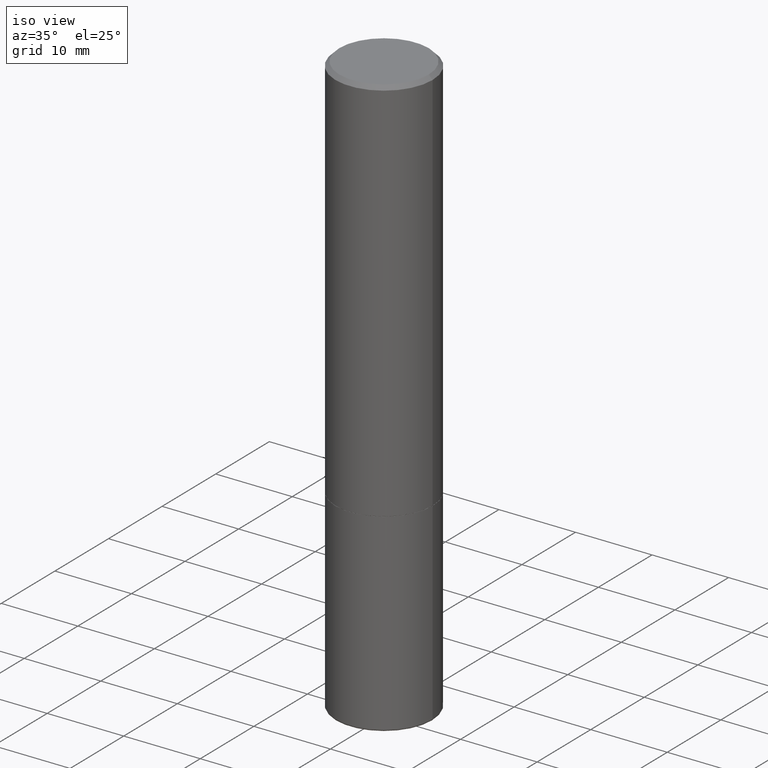
[diagram: clean part render]
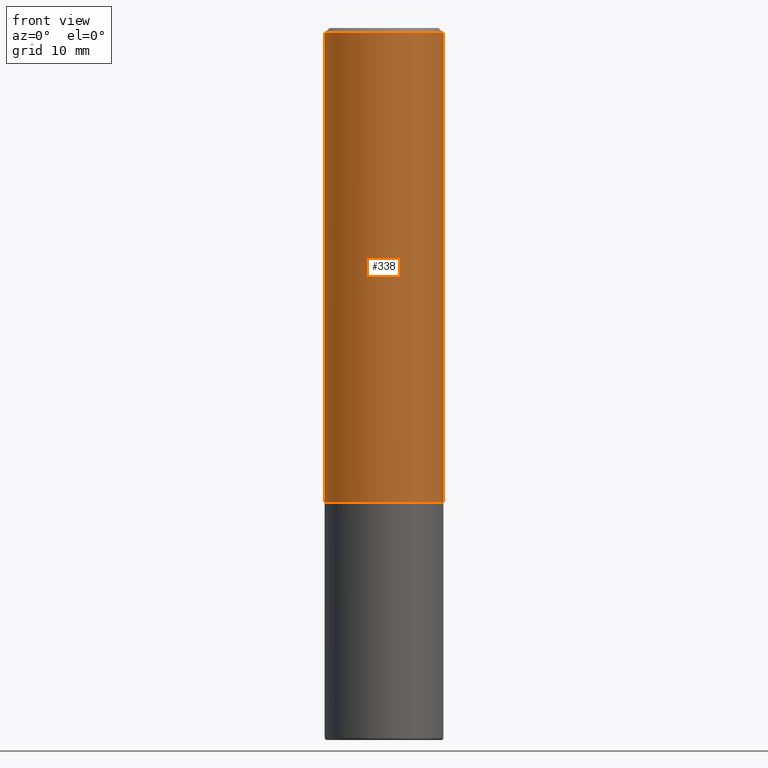
[diagram: tour spotlight — one face highlighted and labeled with its STEP entity id]
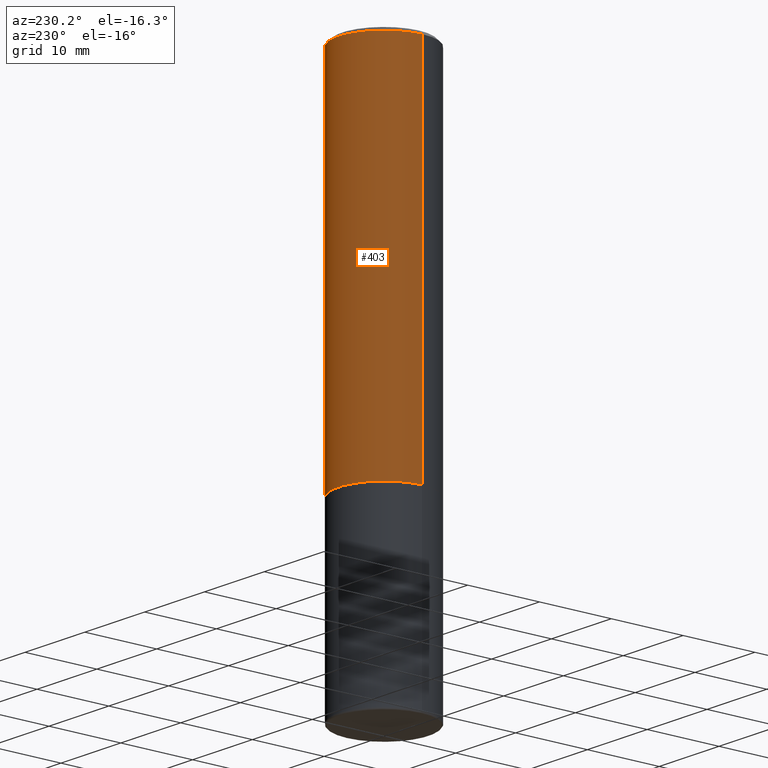
[diagram: tour spotlight — one face highlighted and labeled with its STEP entity id]
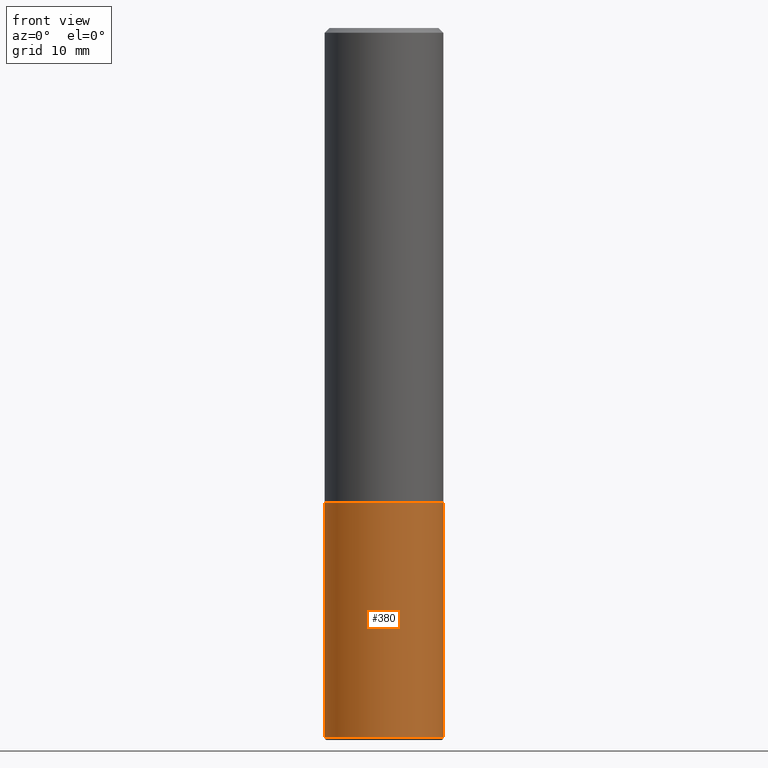
[diagram: tour spotlight — one face highlighted and labeled with its STEP entity id]
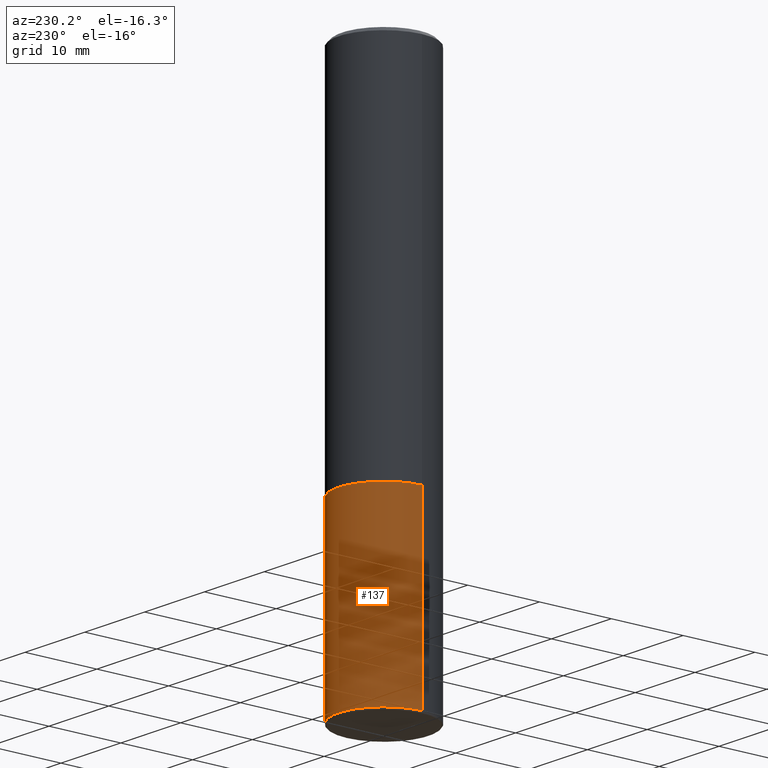
[diagram: tour spotlight — one face highlighted and labeled with its STEP entity id]
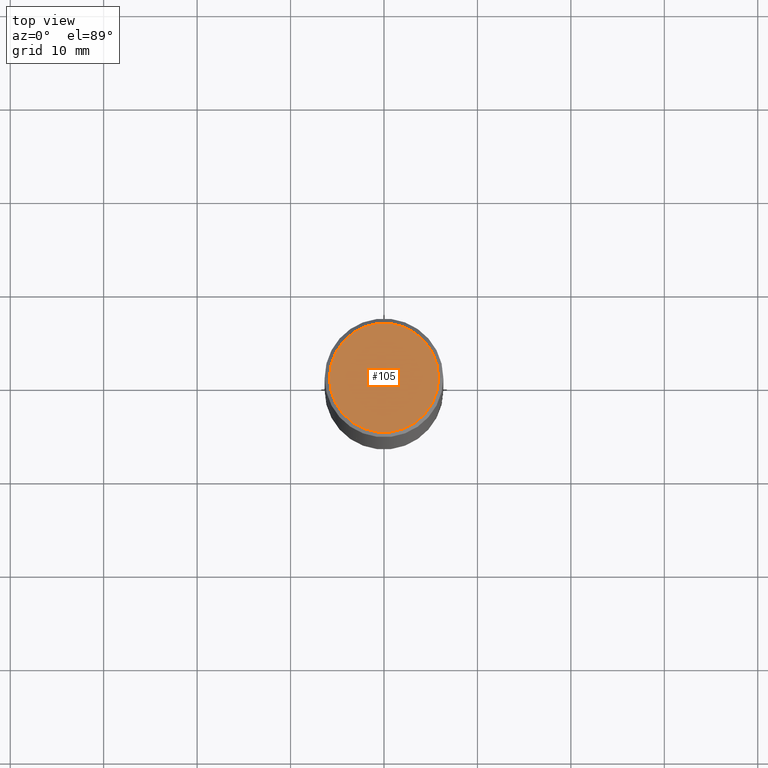
[diagram: tour spotlight — one face highlighted and labeled with its STEP entity id]
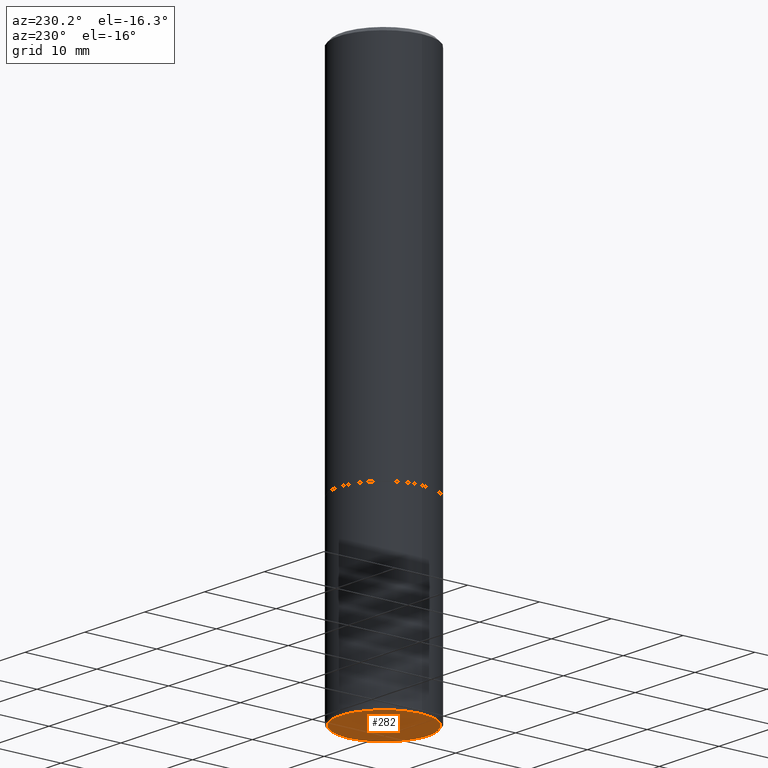
[diagram: tour spotlight — one face highlighted and labeled with its STEP entity id]
A machine part: a face-by-face anatomy tour. The part has 14 B-rep faces; the first image is the clean iso view, then the 6 largest visible faces are spotlighted one at a time (largest first), each with its STEP entity span.

Face 1 — front view, entity #338. In plain terms, the highlighted cylindrical surface (partial cylindrical patch) has radius 6.35 mm, axis along (-0, 0, 1).
Definition (entity closure, byte-faithful):
#5 = VECTOR ( 'NONE', #305, 39.37007874015748143 ) ;
#12 = CARTESIAN_POINT ( 'NONE',  ( 0.2500000000000002220, -8.725211865769017202E-15, -1.999000000000000110 ) ) ;
#13 = DIRECTION ( 'NONE',  ( 1.000000000000000000, -6.982962677686267499E-15, 4.876176775795936353E-29 ) ) ;
#40 = CARTESIAN_POINT ( 'NONE',  ( -0.2500000000000001110, 1.776356839400251254E-15, -1.229733772563727146E-29 ) ) ;
#49 = CARTESIAN_POINT ( 'NONE',  ( 4.890937612370287172E-31, -6.982962677686310098E-17, -0.02000000000000005593 ) ) ;
#54 = VERTEX_POINT ( 'NONE', #194 ) ;
#57 = VERTEX_POINT ( 'NONE', #12 ) ;
#64 = CIRCLE ( 'NONE', #151, 0.2500000000000002220 ) ;
#68 = EDGE_CURVE ( 'NONE', #168, #225, #94, .T. ) ;
#71 = AXIS2_PLACEMENT_3D ( 'NONE', #49, #141, #73 ) ;
#73 = DIRECTION ( 'NONE',  ( 1.000000000000000000, -6.982962677686266711E-15, 0.000000000000000000 ) ) ;
#84 = FACE_OUTER_BOUND ( 'NONE', #351, .T. ) ;
#94 = LINE ( 'NONE', #40, #5 ) ;
#111 = DIRECTION ( 'NONE',  ( -2.445468806185136877E-29, 3.491481338843145188E-15, 1.000000000000000000 ) ) ;
#114 = AXIS2_PLACEMENT_3D ( 'NONE', #408, #153, #13 ) ;
#141 = DIRECTION ( 'NONE',  ( -2.445468806185136597E-29, 3.491481338843145583E-15, 1.000000000000000000 ) ) ;
#144 = VECTOR ( 'NONE', #111, 39.37007874015748143 ) ;
#146 = CARTESIAN_POINT ( 'NONE',  ( 0.2500000000000001110, -1.745740669421567664E-15, 1.219044193948984649E-29 ) ) ;
#147 = CYLINDRICAL_SURFACE ( 'NONE', #114, 0.2500000000000001110 ) ;
#151 = AXIS2_PLACEMENT_3D ( 'NONE', #252, #218, #322 ) ;
#153 = DIRECTION ( 'NONE',  ( -2.445468806185136597E-29, 3.491481338843145583E-15, 1.000000000000000000 ) ) ;
#155 = EDGE_CURVE ( 'NONE', #225, #54, #392, .T. ) ;
#168 = VERTEX_POINT ( 'NONE', #179 ) ;
#179 = CARTESIAN_POINT ( 'NONE',  ( -0.2500000000000002220, -1.748293572161901516E-15, -1.999000000000000110 ) ) ;
#194 = CARTESIAN_POINT ( 'NONE',  ( 0.2500000000000000000, -1.784954126219746189E-15, -0.02000000000000005593 ) ) ;
#218 = DIRECTION ( 'NONE',  ( -2.445468806185136597E-29, 3.491481338843145583E-15, 1.000000000000000000 ) ) ;
#225 = VERTEX_POINT ( 'NONE', #382 ) ;
#227 = EDGE_CURVE ( 'NONE', #168, #57, #64, .T. ) ;
#252 = CARTESIAN_POINT ( 'NONE',  ( 4.888492143564088712E-29, -6.979471196347448158E-15, -1.999000000000000110 ) ) ;
#257 = LINE ( 'NONE', #146, #144 ) ;
#259 = EDGE_CURVE ( 'NONE', #57, #54, #257, .T. ) ;
#294 = ORIENTED_EDGE ( 'NONE', *, *, #259, .T. ) ;
#305 = DIRECTION ( 'NONE',  ( -2.445468806185136877E-29, 3.491481338843145188E-15, 1.000000000000000000 ) ) ;
#322 = DIRECTION ( 'NONE',  ( 1.000000000000000000, -6.982962677686268288E-15, 0.000000000000000000 ) ) ;
#329 = ORIENTED_EDGE ( 'NONE', *, *, #227, .T. ) ;
#338 = ADVANCED_FACE ( 'NONE', ( #84 ), #147, .T. ) ;
#351 = EDGE_LOOP ( 'NONE', ( #358, #329, #294, #412 ) ) ;
#358 = ORIENTED_EDGE ( 'NONE', *, *, #68, .F. ) ;
#382 = CARTESIAN_POINT ( 'NONE',  ( -0.2500000000000000000, 1.675911042644703577E-15, -0.02000000000000005593 ) ) ;
#392 = CIRCLE ( 'NONE', #71, 0.2500000000000000000 ) ;
#408 = CARTESIAN_POINT ( 'NONE',  ( 0.000000000000000000, 0.000000000000000000, 0.000000000000000000 ) ) ;
#412 = ORIENTED_EDGE ( 'NONE', *, *, #155, .F. ) ;

Face 2 — auxiliary view, entity #403. In plain terms, the highlighted cylindrical surface (partial cylindrical patch) has radius 6.35 mm, axis along (-0, 0, 1).
Definition (entity closure, byte-faithful):
#5 = VECTOR ( 'NONE', #305, 39.37007874015748143 ) ;
#12 = CARTESIAN_POINT ( 'NONE',  ( 0.2500000000000002220, -8.725211865769017202E-15, -1.999000000000000110 ) ) ;
#17 = DIRECTION ( 'NONE',  ( -2.445468806185136597E-29, 3.491481338843145583E-15, 1.000000000000000000 ) ) ;
#40 = CARTESIAN_POINT ( 'NONE',  ( -0.2500000000000001110, 1.776356839400251254E-15, -1.229733772563727146E-29 ) ) ;
#43 = EDGE_CURVE ( 'NONE', #54, #225, #391, .T. ) ;
#50 = CARTESIAN_POINT ( 'NONE',  ( 0.000000000000000000, 0.000000000000000000, 0.000000000000000000 ) ) ;
#54 = VERTEX_POINT ( 'NONE', #194 ) ;
#57 = VERTEX_POINT ( 'NONE', #12 ) ;
#68 = EDGE_CURVE ( 'NONE', #168, #225, #94, .T. ) ;
#94 = LINE ( 'NONE', #40, #5 ) ;
#109 = DIRECTION ( 'NONE',  ( -2.445468806185136597E-29, 3.491481338843145583E-15, 1.000000000000000000 ) ) ;
#111 = DIRECTION ( 'NONE',  ( -2.445468806185136877E-29, 3.491481338843145188E-15, 1.000000000000000000 ) ) ;
#126 = EDGE_LOOP ( 'NONE', ( #355, #280, #286, #287 ) ) ;
#144 = VECTOR ( 'NONE', #111, 39.37007874015748143 ) ;
#146 = CARTESIAN_POINT ( 'NONE',  ( 0.2500000000000001110, -1.745740669421567664E-15, 1.219044193948984649E-29 ) ) ;
#148 = EDGE_CURVE ( 'NONE', #57, #168, #207, .T. ) ;
#156 = DIRECTION ( 'NONE',  ( -2.445468806185136597E-29, 3.491481338843145583E-15, 1.000000000000000000 ) ) ;
#167 = CARTESIAN_POINT ( 'NONE',  ( 4.888492143564088712E-29, -6.979471196347448158E-15, -1.999000000000000110 ) ) ;
#168 = VERTEX_POINT ( 'NONE', #179 ) ;
#179 = CARTESIAN_POINT ( 'NONE',  ( -0.2500000000000002220, -1.748293572161901516E-15, -1.999000000000000110 ) ) ;
#184 = CYLINDRICAL_SURFACE ( 'NONE', #405, 0.2500000000000001110 ) ;
#185 = DIRECTION ( 'NONE',  ( 1.000000000000000000, -6.982962677686268288E-15, 0.000000000000000000 ) ) ;
#191 = FACE_OUTER_BOUND ( 'NONE', #126, .T. ) ;
#194 = CARTESIAN_POINT ( 'NONE',  ( 0.2500000000000000000, -1.784954126219746189E-15, -0.02000000000000005593 ) ) ;
#207 = CIRCLE ( 'NONE', #247, 0.2500000000000002220 ) ;
#225 = VERTEX_POINT ( 'NONE', #382 ) ;
#247 = AXIS2_PLACEMENT_3D ( 'NONE', #167, #17, #185 ) ;
#254 = DIRECTION ( 'NONE',  ( 1.000000000000000000, -6.982962677686267499E-15, 4.876176775795936353E-29 ) ) ;
#257 = LINE ( 'NONE', #146, #144 ) ;
#259 = EDGE_CURVE ( 'NONE', #57, #54, #257, .T. ) ;
#274 = AXIS2_PLACEMENT_3D ( 'NONE', #316, #156, #284 ) ;
#280 = ORIENTED_EDGE ( 'NONE', *, *, #68, .T. ) ;
#284 = DIRECTION ( 'NONE',  ( 1.000000000000000000, -6.982962677686266711E-15, 0.000000000000000000 ) ) ;
#286 = ORIENTED_EDGE ( 'NONE', *, *, #43, .F. ) ;
#287 = ORIENTED_EDGE ( 'NONE', *, *, #259, .F. ) ;
#305 = DIRECTION ( 'NONE',  ( -2.445468806185136877E-29, 3.491481338843145188E-15, 1.000000000000000000 ) ) ;
#316 = CARTESIAN_POINT ( 'NONE',  ( 4.890937612370287172E-31, -6.982962677686310098E-17, -0.02000000000000005593 ) ) ;
#355 = ORIENTED_EDGE ( 'NONE', *, *, #148, .T. ) ;
#382 = CARTESIAN_POINT ( 'NONE',  ( -0.2500000000000000000, 1.675911042644703577E-15, -0.02000000000000005593 ) ) ;
#391 = CIRCLE ( 'NONE', #274, 0.2500000000000000000 ) ;
#403 = ADVANCED_FACE ( 'NONE', ( #191 ), #184, .T. ) ;
#405 = AXIS2_PLACEMENT_3D ( 'NONE', #50, #109, #254 ) ;

Face 3 — front view, entity #380. In plain terms, the highlighted cylindrical surface (partial cylindrical patch) has radius 6.35 mm, axis along (-0, 0, 1).
Definition (entity closure, byte-faithful):
#8 = EDGE_CURVE ( 'NONE', #375, #157, #348, .T. ) ;
#15 = CARTESIAN_POINT ( 'NONE',  ( -0.2499999999999998890, -8.663172363740755817E-15, -2.990000000000000213 ) ) ;
#21 = DIRECTION ( 'NONE',  ( -2.445468806185136597E-29, 3.491481338843145583E-15, 1.000000000000000000 ) ) ;
#22 = ORIENTED_EDGE ( 'NONE', *, *, #330, .T. ) ;
#28 = VERTEX_POINT ( 'NONE', #170 ) ;
#44 = AXIS2_PLACEMENT_3D ( 'NONE', #199, #363, #337 ) ;
#52 = DIRECTION ( 'NONE',  ( -2.445468806185136877E-29, 3.491481338843145188E-15, 1.000000000000000000 ) ) ;
#58 = DIRECTION ( 'NONE',  ( 1.000000000000000000, -6.982962677686266711E-15, 0.000000000000000000 ) ) ;
#61 = EDGE_LOOP ( 'NONE', ( #285, #224, #22, #381 ) ) ;
#108 = EDGE_CURVE ( 'NONE', #375, #317, #310, .T. ) ;
#110 = VECTOR ( 'NONE', #159, 39.37007874015748143 ) ;
#121 = AXIS2_PLACEMENT_3D ( 'NONE', #313, #21, #339 ) ;
#157 = VERTEX_POINT ( 'NONE', #402 ) ;
#159 = DIRECTION ( 'NONE',  ( -2.445468806185136877E-29, 3.491481338843145188E-15, 1.000000000000000000 ) ) ;
#170 = CARTESIAN_POINT ( 'NONE',  ( 0.2500000000000000000, -8.728703347107858632E-15, -2.000000000000000444 ) ) ;
#177 = CARTESIAN_POINT ( 'NONE',  ( -0.2500000000000000000, 1.776356839400250465E-15, -1.229733772563726445E-29 ) ) ;
#178 = FACE_OUTER_BOUND ( 'NONE', #61, .T. ) ;
#181 = CYLINDRICAL_SURFACE ( 'NONE', #121, 0.2500000000000000000 ) ;
#199 = CARTESIAN_POINT ( 'NONE',  ( 7.311951730493558245E-29, -1.043952920314100628E-14, -2.990000000000000213 ) ) ;
#211 = LINE ( 'NONE', #222, #110 ) ;
#221 = CARTESIAN_POINT ( 'NONE',  ( 4.890937612370273754E-29, -6.982962677686291954E-15, -2.000000000000000444 ) ) ;
#222 = CARTESIAN_POINT ( 'NONE',  ( 0.2500000000000000000, -1.745740669421566678E-15, 1.219044193948983948E-29 ) ) ;
#224 = ORIENTED_EDGE ( 'NONE', *, *, #108, .T. ) ;
#243 = EDGE_CURVE ( 'NONE', #157, #28, #289, .T. ) ;
#278 = VECTOR ( 'NONE', #52, 39.37007874015748143 ) ;
#285 = ORIENTED_EDGE ( 'NONE', *, *, #8, .F. ) ;
#289 = CIRCLE ( 'NONE', #308, 0.2500000000000000000 ) ;
#308 = AXIS2_PLACEMENT_3D ( 'NONE', #221, #415, #58 ) ;
#310 = CIRCLE ( 'NONE', #44, 0.2500000000000000000 ) ;
#313 = CARTESIAN_POINT ( 'NONE',  ( 0.000000000000000000, 0.000000000000000000, 0.000000000000000000 ) ) ;
#317 = VERTEX_POINT ( 'NONE', #341 ) ;
#330 = EDGE_CURVE ( 'NONE', #317, #28, #211, .T. ) ;
#337 = DIRECTION ( 'NONE',  ( 1.000000000000000000, -6.982962677686262766E-15, 0.000000000000000000 ) ) ;
#339 = DIRECTION ( 'NONE',  ( 1.000000000000000000, -6.982962677686266711E-15, 4.876176775795935793E-29 ) ) ;
#341 = CARTESIAN_POINT ( 'NONE',  ( 0.2499999999999998890, -1.218526987256257138E-14, -2.990000000000000213 ) ) ;
#348 = LINE ( 'NONE', #177, #278 ) ;
#363 = DIRECTION ( 'NONE',  ( -2.445468806185136597E-29, 3.491481338843145583E-15, 1.000000000000000000 ) ) ;
#375 = VERTEX_POINT ( 'NONE', #15 ) ;
#380 = ADVANCED_FACE ( 'NONE', ( #178 ), #181, .T. ) ;
#381 = ORIENTED_EDGE ( 'NONE', *, *, #243, .F. ) ;
#402 = CARTESIAN_POINT ( 'NONE',  ( -0.2500000000000000000, -6.934889101013398653E-15, -2.000000000000000444 ) ) ;
#415 = DIRECTION ( 'NONE',  ( -2.445468806185136597E-29, 3.491481338843145583E-15, 1.000000000000000000 ) ) ;

Face 4 — auxiliary view, entity #137. In plain terms, the highlighted cylindrical surface (partial cylindrical patch) has radius 6.35 mm, axis along (-0, 0, 1).
Definition (entity closure, byte-faithful):
#8 = EDGE_CURVE ( 'NONE', #375, #157, #348, .T. ) ;
#11 = CYLINDRICAL_SURFACE ( 'NONE', #384, 0.2500000000000000000 ) ;
#15 = CARTESIAN_POINT ( 'NONE',  ( -0.2499999999999998890, -8.663172363740755817E-15, -2.990000000000000213 ) ) ;
#28 = VERTEX_POINT ( 'NONE', #170 ) ;
#29 = ORIENTED_EDGE ( 'NONE', *, *, #330, .F. ) ;
#52 = DIRECTION ( 'NONE',  ( -2.445468806185136877E-29, 3.491481338843145188E-15, 1.000000000000000000 ) ) ;
#53 = EDGE_CURVE ( 'NONE', #28, #157, #318, .T. ) ;
#59 = ORIENTED_EDGE ( 'NONE', *, *, #277, .T. ) ;
#90 = DIRECTION ( 'NONE',  ( -2.445468806185136597E-29, 3.491481338843145583E-15, 1.000000000000000000 ) ) ;
#93 = DIRECTION ( 'NONE',  ( 1.000000000000000000, -6.982962677686262766E-15, 0.000000000000000000 ) ) ;
#95 = ORIENTED_EDGE ( 'NONE', *, *, #53, .F. ) ;
#110 = VECTOR ( 'NONE', #159, 39.37007874015748143 ) ;
#117 = CARTESIAN_POINT ( 'NONE',  ( 4.890937612370273754E-29, -6.982962677686291954E-15, -2.000000000000000444 ) ) ;
#132 = AXIS2_PLACEMENT_3D ( 'NONE', #117, #90, #223 ) ;
#137 = ADVANCED_FACE ( 'NONE', ( #293 ), #11, .T. ) ;
#157 = VERTEX_POINT ( 'NONE', #402 ) ;
#159 = DIRECTION ( 'NONE',  ( -2.445468806185136877E-29, 3.491481338843145188E-15, 1.000000000000000000 ) ) ;
#170 = CARTESIAN_POINT ( 'NONE',  ( 0.2500000000000000000, -8.728703347107858632E-15, -2.000000000000000444 ) ) ;
#177 = CARTESIAN_POINT ( 'NONE',  ( -0.2500000000000000000, 1.776356839400250465E-15, -1.229733772563726445E-29 ) ) ;
#188 = EDGE_LOOP ( 'NONE', ( #59, #352, #95, #29 ) ) ;
#211 = LINE ( 'NONE', #222, #110 ) ;
#222 = CARTESIAN_POINT ( 'NONE',  ( 0.2500000000000000000, -1.745740669421566678E-15, 1.219044193948983948E-29 ) ) ;
#223 = DIRECTION ( 'NONE',  ( 1.000000000000000000, -6.982962677686266711E-15, 0.000000000000000000 ) ) ;
#265 = DIRECTION ( 'NONE',  ( 1.000000000000000000, -6.982962677686266711E-15, 4.876176775795935793E-29 ) ) ;
#273 = CARTESIAN_POINT ( 'NONE',  ( 0.000000000000000000, 0.000000000000000000, 0.000000000000000000 ) ) ;
#277 = EDGE_CURVE ( 'NONE', #317, #375, #385, .T. ) ;
#278 = VECTOR ( 'NONE', #52, 39.37007874015748143 ) ;
#293 = FACE_OUTER_BOUND ( 'NONE', #188, .T. ) ;
#317 = VERTEX_POINT ( 'NONE', #341 ) ;
#318 = CIRCLE ( 'NONE', #132, 0.2500000000000000000 ) ;
#330 = EDGE_CURVE ( 'NONE', #317, #28, #211, .T. ) ;
#341 = CARTESIAN_POINT ( 'NONE',  ( 0.2499999999999998890, -1.218526987256257138E-14, -2.990000000000000213 ) ) ;
#345 = AXIS2_PLACEMENT_3D ( 'NONE', #387, #359, #93 ) ;
#348 = LINE ( 'NONE', #177, #278 ) ;
#352 = ORIENTED_EDGE ( 'NONE', *, *, #8, .T. ) ;
#359 = DIRECTION ( 'NONE',  ( -2.445468806185136597E-29, 3.491481338843145583E-15, 1.000000000000000000 ) ) ;
#375 = VERTEX_POINT ( 'NONE', #15 ) ;
#384 = AXIS2_PLACEMENT_3D ( 'NONE', #273, #399, #265 ) ;
#385 = CIRCLE ( 'NONE', #345, 0.2500000000000000000 ) ;
#387 = CARTESIAN_POINT ( 'NONE',  ( 7.311951730493558245E-29, -1.043952920314100628E-14, -2.990000000000000213 ) ) ;
#399 = DIRECTION ( 'NONE',  ( -2.445468806185136597E-29, 3.491481338843145583E-15, 1.000000000000000000 ) ) ;
#402 = CARTESIAN_POINT ( 'NONE',  ( -0.2500000000000000000, -6.934889101013398653E-15, -2.000000000000000444 ) ) ;

Face 5 — top view, entity #105. In plain terms, the highlighted planar face has unit normal (0, -0, -1).
Definition (entity closure, byte-faithful):
#19 = CARTESIAN_POINT ( 'NONE',  ( -1.148236555768741665E-45, 1.639377487418492057E-31, 4.695363739110452099E-17 ) ) ;
#23 = EDGE_CURVE ( 'NONE', #229, #258, #369, .T. ) ;
#24 = DIRECTION ( 'NONE',  ( -2.445468806185136597E-29, 3.491481338843145583E-15, 1.000000000000000000 ) ) ;
#33 = DIRECTION ( 'NONE',  ( 2.438088387897960049E-29, -3.491481338843145188E-15, -1.000000000000000000 ) ) ;
#55 = EDGE_LOOP ( 'NONE', ( #116, #332 ) ) ;
#83 = CARTESIAN_POINT ( 'NONE',  ( -1.148236555768741665E-45, 1.639377487418492057E-31, 4.695363739110452099E-17 ) ) ;
#103 = PLANE ( 'NONE',  #361 ) ;
#105 = ADVANCED_FACE ( 'NONE', ( #331 ), #103, .F. ) ;
#116 = ORIENTED_EDGE ( 'NONE', *, *, #189, .T. ) ;
#145 = DIRECTION ( 'NONE',  ( -2.445468806185136597E-29, 3.491481338843145583E-15, 1.000000000000000000 ) ) ;
#171 = AXIS2_PLACEMENT_3D ( 'NONE', #83, #24, #298 ) ;
#189 = EDGE_CURVE ( 'NONE', #258, #229, #376, .T. ) ;
#195 = CARTESIAN_POINT ( 'NONE',  ( -0.2299999999999999267, 1.640996229256272519E-15, 4.695363739109317495E-17 ) ) ;
#229 = VERTEX_POINT ( 'NONE', #350 ) ;
#233 = CARTESIAN_POINT ( 'NONE',  ( 1.606081415867840870E-15, 0.2299999999999999267, -7.795638892383710465E-16 ) ) ;
#249 = AXIS2_PLACEMENT_3D ( 'NONE', #19, #145, #311 ) ;
#258 = VERTEX_POINT ( 'NONE', #195 ) ;
#298 = DIRECTION ( 'NONE',  ( 1.000000000000000000, -6.982962677686267499E-15, 4.875813741439101456E-29 ) ) ;
#301 = DIRECTION ( 'NONE',  ( -1.000000000000000000, 6.982962677686265922E-15, -4.876176775795935793E-29 ) ) ;
#311 = DIRECTION ( 'NONE',  ( 1.000000000000000000, -6.982962677686267499E-15, 4.875813741439101456E-29 ) ) ;
#331 = FACE_OUTER_BOUND ( 'NONE', #55, .T. ) ;
#332 = ORIENTED_EDGE ( 'NONE', *, *, #23, .T. ) ;
#350 = CARTESIAN_POINT ( 'NONE',  ( 0.2299999999999999267, -1.681434332853598617E-15, 4.695363739111602110E-17 ) ) ;
#361 = AXIS2_PLACEMENT_3D ( 'NONE', #233, #33, #301 ) ;
#369 = CIRCLE ( 'NONE', #171, 0.2299999999999999267 ) ;
#376 = CIRCLE ( 'NONE', #249, 0.2299999999999999267 ) ;

Face 6 — auxiliary view, entity #282. In plain terms, the highlighted planar face has unit normal (0, -0, -1).
Definition (entity closure, byte-faithful):
#25 = AXIS2_PLACEMENT_3D ( 'NONE', #354, #413, #193 ) ;
#62 = PLANE ( 'NONE',  #275 ) ;
#92 = DIRECTION ( 'NONE',  ( -2.445468806185136597E-29, 3.491481338843145583E-15, 1.000000000000000000 ) ) ;
#106 = DIRECTION ( 'NONE',  ( 2.438088387897960049E-29, -3.491481338843145188E-15, -1.000000000000000000 ) ) ;
#120 = CARTESIAN_POINT ( 'NONE',  ( -0.2400000000000000466, -8.716156907222976683E-15, -2.999999999999999556 ) ) ;
#142 = CARTESIAN_POINT ( 'NONE',  ( 1.210550456377282398E-28, -3.644824032368776532E-15, -2.999999999999999556 ) ) ;
#152 = DIRECTION ( 'NONE',  ( 1.000000000000000000, -6.982962677686266711E-15, 0.000000000000000000 ) ) ;
#182 = CIRCLE ( 'NONE', #231, 0.2400000000000000466 ) ;
#192 = VERTEX_POINT ( 'NONE', #120 ) ;
#193 = DIRECTION ( 'NONE',  ( 1.000000000000000000, -6.982962677686266711E-15, 0.000000000000000000 ) ) ;
#212 = EDGE_CURVE ( 'NONE', #192, #303, #182, .T. ) ;
#215 = EDGE_CURVE ( 'NONE', #303, #192, #370, .T. ) ;
#219 = ORIENTED_EDGE ( 'NONE', *, *, #212, .F. ) ;
#226 = FACE_OUTER_BOUND ( 'NONE', #416, .T. ) ;
#231 = AXIS2_PLACEMENT_3D ( 'NONE', #346, #92, #152 ) ;
#275 = AXIS2_PLACEMENT_3D ( 'NONE', #142, #106, #279 ) ;
#279 = DIRECTION ( 'NONE',  ( -1.000000000000000000, 6.982962677686265922E-15, -4.876176775795935793E-29 ) ) ;
#282 = ADVANCED_FACE ( 'NONE', ( #226 ), #62, .T. ) ;
#303 = VERTEX_POINT ( 'NONE', #371 ) ;
#321 = ORIENTED_EDGE ( 'NONE', *, *, #215, .F. ) ;
#346 = CARTESIAN_POINT ( 'NONE',  ( 7.336406418555408669E-29, -1.047444401652943478E-14, -2.999999999999999556 ) ) ;
#354 = CARTESIAN_POINT ( 'NONE',  ( 7.336406418555408669E-29, -1.047444401652943478E-14, -2.999999999999999556 ) ) ;
#370 = CIRCLE ( 'NONE', #25, 0.2400000000000000466 ) ;
#371 = CARTESIAN_POINT ( 'NONE',  ( 0.2400000000000000466, -1.215035505917413973E-14, -2.999999999999999556 ) ) ;
#413 = DIRECTION ( 'NONE',  ( -2.445468806185136597E-29, 3.491481338843145583E-15, 1.000000000000000000 ) ) ;
#416 = EDGE_LOOP ( 'NONE', ( #321, #219 ) ) ;